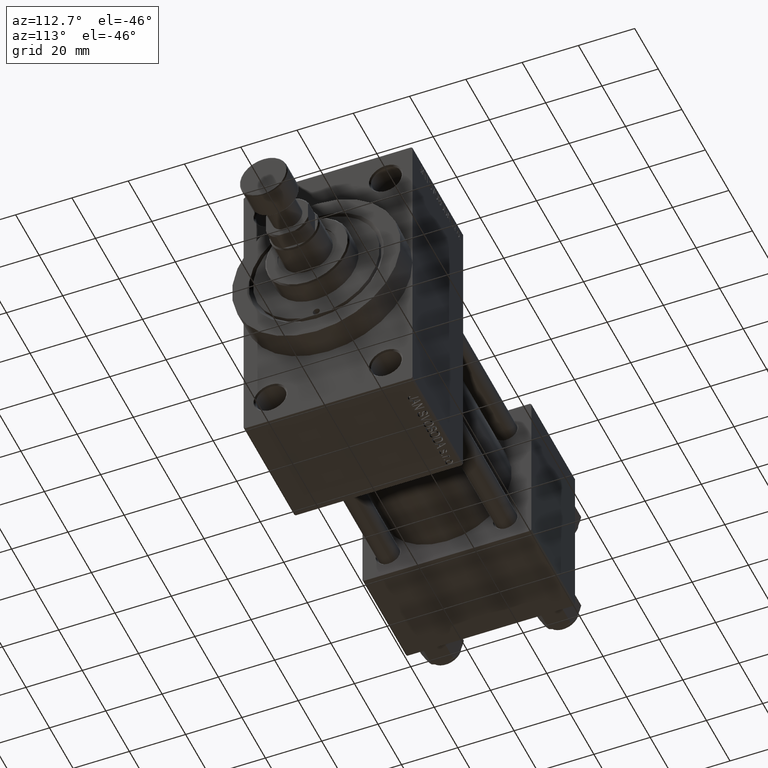
[diagram: clean part render]
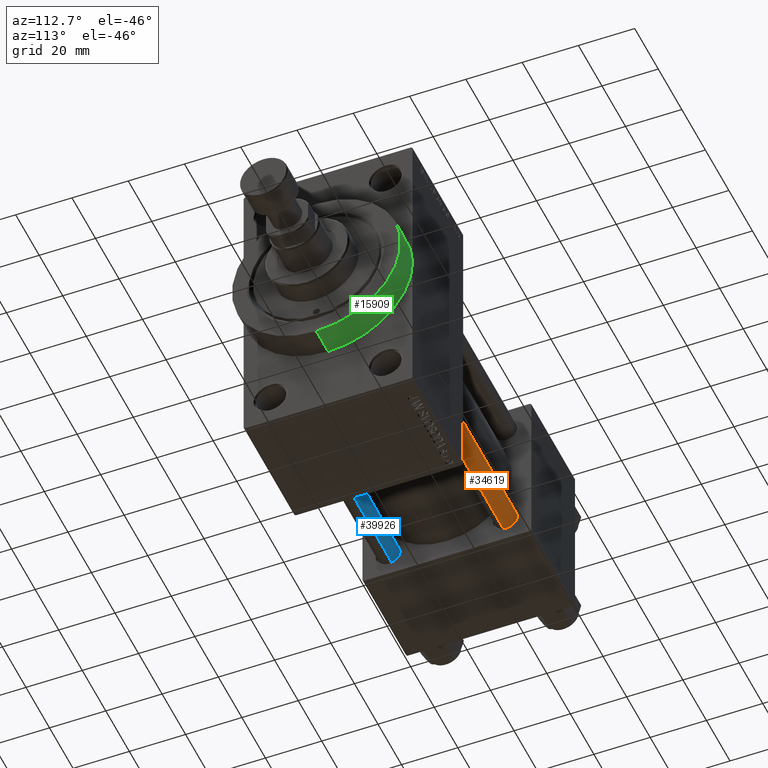
[diagram: same view with three faces highlighted in distinct colors, each labeled with its STEP entity id]
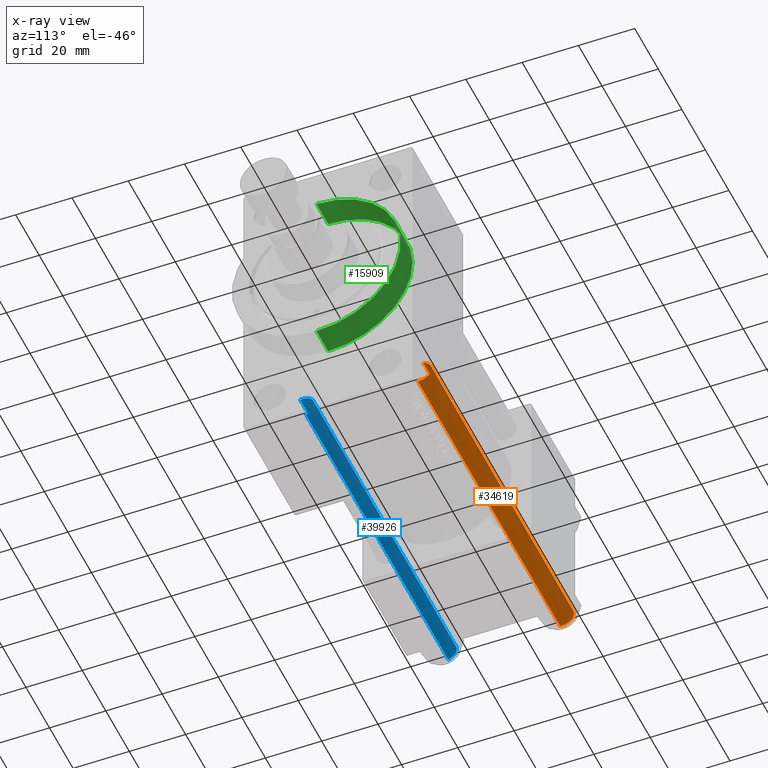
[diagram: x-ray of the same camera — body ghosted, the three highlighted faces saturated]
A machine part, auxiliary view with three faces highlighted in distinct colors.
The next image is the same camera in x-ray (body ghosted, the three faces saturated) — at least one of them is partly hidden behind the body in this view.
Their STEP definitions:

[orange] entity #34619 — the highlighted cylindrical surface (edge-blend (fillet) strip) has radius 4 mm, axis along (1, -0, 0).
#1258 = CARTESIAN_POINT ( 'NONE',  ( 4.000000000000000000, 4.898587196589411843E-16, 122.0000000000000000 ) ) ;
#1484 = LINE ( 'NONE', #1258, #18947 ) ;
#3164 = ORIENTED_EDGE ( 'NONE', *, *, #9100, .T. ) ;
#5707 = DIRECTION ( 'NONE',  ( -0.000000000000000000, -0.000000000000000000, 1.000000000000000000 ) ) ;
#6847 = CARTESIAN_POINT ( 'NONE',  ( -4.000000000000000000, 0.000000000000000000, 122.0000000000000000 ) ) ;
#7933 = AXIS2_PLACEMENT_3D ( 'NONE', #42003, #5707, #38379 ) ;
#8348 = EDGE_CURVE ( 'NONE', #18484, #18080, #25483, .T. ) ;
#9100 = EDGE_CURVE ( 'NONE', #23248, #18080, #38825, .T. ) ;
#14437 = DIRECTION ( 'NONE',  ( 1.000000000000000000, 0.000000000000000000, 0.000000000000000000 ) ) ;
#16521 = CARTESIAN_POINT ( 'NONE',  ( 0.000000000000000000, 0.000000000000000000, 122.0000000000000000 ) ) ;
#17091 = CARTESIAN_POINT ( 'NONE',  ( -4.000000000000000000, 0.000000000000000000, 121.5000000000000426 ) ) ;
#18080 = VERTEX_POINT ( 'NONE', #27108 ) ;
#18484 = VERTEX_POINT ( 'NONE', #17091 ) ;
#18947 = VECTOR ( 'NONE', #45047, 1000.000000000000000 ) ;
#19963 = CIRCLE ( 'NONE', #26170, 4.000000000000000000 ) ;
#20386 = ORIENTED_EDGE ( 'NONE', *, *, #8348, .F. ) ;
#20648 = DIRECTION ( 'NONE',  ( -0.000000000000000000, -0.000000000000000000, -1.000000000000000000 ) ) ;
#21707 = AXIS2_PLACEMENT_3D ( 'NONE', #16521, #20648, #27907 ) ;
#22616 = VECTOR ( 'NONE', #44082, 1000.000000000000000 ) ;
#23248 = VERTEX_POINT ( 'NONE', #24085 ) ;
#24085 = CARTESIAN_POINT ( 'NONE',  ( 4.000000000000000000, 4.898587196589411843E-16, 0.5000000000000559552 ) ) ;
#25483 = LINE ( 'NONE', #6847, #22616 ) ;
#26170 = AXIS2_PLACEMENT_3D ( 'NONE', #43210, #46836, #14437 ) ;
#26194 = EDGE_CURVE ( 'NONE', #18484, #38448, #19963, .T. ) ;
#26772 = ORIENTED_EDGE ( 'NONE', *, *, #26194, .T. ) ;
#27108 = CARTESIAN_POINT ( 'NONE',  ( -4.000000000000000000, 0.000000000000000000, 0.5000000000000559552 ) ) ;
#27257 = CARTESIAN_POINT ( 'NONE',  ( 4.000000000000000000, 4.898587196589411843E-16, 121.5000000000000426 ) ) ;
#27907 = DIRECTION ( 'NONE',  ( -1.000000000000000000, 0.000000000000000000, 0.000000000000000000 ) ) ;
#31045 = CYLINDRICAL_SURFACE ( 'NONE', #21707, 4.000000000000000000 ) ;
#34619 = ADVANCED_FACE ( 'NONE', ( #38546 ), #31045, .T. ) ;
#38379 = DIRECTION ( 'NONE',  ( 1.000000000000000000, 0.000000000000000000, 0.000000000000000000 ) ) ;
#38448 = VERTEX_POINT ( 'NONE', #27257 ) ;
#38546 = FACE_OUTER_BOUND ( 'NONE', #40560, .T. ) ;
#38825 = CIRCLE ( 'NONE', #7933, 4.000000000000000000 ) ;
#40560 = EDGE_LOOP ( 'NONE', ( #26772, #46616, #3164, #20386 ) ) ;
#42003 = CARTESIAN_POINT ( 'NONE',  ( 0.000000000000000000, 0.000000000000000000, 0.5000000000000559552 ) ) ;
#43210 = CARTESIAN_POINT ( 'NONE',  ( 0.000000000000000000, 0.000000000000000000, 121.5000000000000426 ) ) ;
#44082 = DIRECTION ( 'NONE',  ( -0.000000000000000000, -0.000000000000000000, -1.000000000000000000 ) ) ;
#45047 = DIRECTION ( 'NONE',  ( -0.000000000000000000, -0.000000000000000000, -1.000000000000000000 ) ) ;
#46616 = ORIENTED_EDGE ( 'NONE', *, *, #47820, .T. ) ;
#46836 = DIRECTION ( 'NONE',  ( 0.000000000000000000, 0.000000000000000000, -1.000000000000000000 ) ) ;
#47820 = EDGE_CURVE ( 'NONE', #38448, #23248, #1484, .T. ) ;

[blue] entity #39926 — the highlighted cylindrical surface (edge-blend (fillet) strip) has radius 4 mm, axis along (-1, 0, 0).
#1258 = CARTESIAN_POINT ( 'NONE',  ( 4.000000000000000000, 4.898587196589411843E-16, 122.0000000000000000 ) ) ;
#1484 = LINE ( 'NONE', #1258, #18947 ) ;
#2740 = FACE_OUTER_BOUND ( 'NONE', #15203, .T. ) ;
#6847 = CARTESIAN_POINT ( 'NONE',  ( -4.000000000000000000, 0.000000000000000000, 122.0000000000000000 ) ) ;
#8348 = EDGE_CURVE ( 'NONE', #18484, #18080, #25483, .T. ) ;
#13538 = ORIENTED_EDGE ( 'NONE', *, *, #47820, .F. ) ;
#13793 = DIRECTION ( 'NONE',  ( 1.000000000000000000, 0.000000000000000000, 0.000000000000000000 ) ) ;
#13871 = DIRECTION ( 'NONE',  ( -0.000000000000000000, -0.000000000000000000, -1.000000000000000000 ) ) ;
#14819 = AXIS2_PLACEMENT_3D ( 'NONE', #35894, #13871, #17496 ) ;
#15203 = EDGE_LOOP ( 'NONE', ( #13538, #22610, #47753, #39641 ) ) ;
#16516 = CIRCLE ( 'NONE', #21220, 4.000000000000000000 ) ;
#17091 = CARTESIAN_POINT ( 'NONE',  ( -4.000000000000000000, 0.000000000000000000, 121.5000000000000426 ) ) ;
#17496 = DIRECTION ( 'NONE',  ( -1.000000000000000000, 0.000000000000000000, 0.000000000000000000 ) ) ;
#17824 = AXIS2_PLACEMENT_3D ( 'NONE', #17884, #32631, #44240 ) ;
#17884 = CARTESIAN_POINT ( 'NONE',  ( 0.000000000000000000, 0.000000000000000000, 121.5000000000000426 ) ) ;
#18080 = VERTEX_POINT ( 'NONE', #27108 ) ;
#18484 = VERTEX_POINT ( 'NONE', #17091 ) ;
#18947 = VECTOR ( 'NONE', #45047, 1000.000000000000000 ) ;
#21138 = CYLINDRICAL_SURFACE ( 'NONE', #14819, 4.000000000000000000 ) ;
#21220 = AXIS2_PLACEMENT_3D ( 'NONE', #46928, #47160, #13793 ) ;
#22610 = ORIENTED_EDGE ( 'NONE', *, *, #34395, .T. ) ;
#22616 = VECTOR ( 'NONE', #44082, 1000.000000000000000 ) ;
#23248 = VERTEX_POINT ( 'NONE', #24085 ) ;
#24085 = CARTESIAN_POINT ( 'NONE',  ( 4.000000000000000000, 4.898587196589411843E-16, 0.5000000000000559552 ) ) ;
#24775 = CIRCLE ( 'NONE', #17824, 4.000000000000000000 ) ;
#25483 = LINE ( 'NONE', #6847, #22616 ) ;
#27108 = CARTESIAN_POINT ( 'NONE',  ( -4.000000000000000000, 0.000000000000000000, 0.5000000000000559552 ) ) ;
#27257 = CARTESIAN_POINT ( 'NONE',  ( 4.000000000000000000, 4.898587196589411843E-16, 121.5000000000000426 ) ) ;
#32631 = DIRECTION ( 'NONE',  ( 0.000000000000000000, 0.000000000000000000, -1.000000000000000000 ) ) ;
#34395 = EDGE_CURVE ( 'NONE', #38448, #18484, #24775, .T. ) ;
#35894 = CARTESIAN_POINT ( 'NONE',  ( 0.000000000000000000, 0.000000000000000000, 122.0000000000000000 ) ) ;
#38448 = VERTEX_POINT ( 'NONE', #27257 ) ;
#39641 = ORIENTED_EDGE ( 'NONE', *, *, #45302, .T. ) ;
#39926 = ADVANCED_FACE ( 'NONE', ( #2740 ), #21138, .T. ) ;
#44082 = DIRECTION ( 'NONE',  ( -0.000000000000000000, -0.000000000000000000, -1.000000000000000000 ) ) ;
#44240 = DIRECTION ( 'NONE',  ( 1.000000000000000000, 0.000000000000000000, 0.000000000000000000 ) ) ;
#45047 = DIRECTION ( 'NONE',  ( -0.000000000000000000, -0.000000000000000000, -1.000000000000000000 ) ) ;
#45302 = EDGE_CURVE ( 'NONE', #18080, #23248, #16516, .T. ) ;
#46928 = CARTESIAN_POINT ( 'NONE',  ( 0.000000000000000000, 0.000000000000000000, 0.5000000000000559552 ) ) ;
#47160 = DIRECTION ( 'NONE',  ( -0.000000000000000000, -0.000000000000000000, 1.000000000000000000 ) ) ;
#47753 = ORIENTED_EDGE ( 'NONE', *, *, #8348, .T. ) ;
#47820 = EDGE_CURVE ( 'NONE', #38448, #23248, #1484, .T. ) ;

[green] entity #15909 — the highlighted cylindrical surface (partial cylindrical patch) has radius 30 mm, axis along (-1, -0, -0).
#918 = ORIENTED_EDGE ( 'NONE', *, *, #26039, .T. ) ;
#3516 = DIRECTION ( 'NONE',  ( 1.000000000000000000, 0.000000000000000000, 0.000000000000000000 ) ) ;
#5258 = LINE ( 'NONE', #45644, #45336 ) ;
#5881 = VERTEX_POINT ( 'NONE', #36568 ) ;
#6528 = EDGE_CURVE ( 'NONE', #5881, #26311, #34887, .T. ) ;
#9023 = VERTEX_POINT ( 'NONE', #30401 ) ;
#11002 = DIRECTION ( 'NONE',  ( 0.000000000000000000, 0.000000000000000000, -1.000000000000000000 ) ) ;
#12327 = DIRECTION ( 'NONE',  ( -1.000000000000000000, -0.000000000000000000, -0.000000000000000000 ) ) ;
#12925 = DIRECTION ( 'NONE',  ( 0.000000000000000000, 0.000000000000000000, -1.000000000000000000 ) ) ;
#13923 = DIRECTION ( 'NONE',  ( -1.000000000000000000, -0.000000000000000000, -0.000000000000000000 ) ) ;
#15746 = CARTESIAN_POINT ( 'NONE',  ( 138.0000000000000000, 0.000000000000000000, 0.000000000000000000 ) ) ;
#15888 = VECTOR ( 'NONE', #13923, 1000.000000000000000 ) ;
#15909 = ADVANCED_FACE ( 'NONE', ( #22998 ), #30473, .T. ) ;
#16259 = DIRECTION ( 'NONE',  ( 0.000000000000000000, 0.000000000000000000, -1.000000000000000000 ) ) ;
#18867 = AXIS2_PLACEMENT_3D ( 'NONE', #30225, #12327, #27094 ) ;
#18871 = EDGE_CURVE ( 'NONE', #26311, #40032, #21928, .T. ) ;
#20189 = CARTESIAN_POINT ( 'NONE',  ( 148.0000000000000284, 0.000000000000000000, 0.000000000000000000 ) ) ;
#20209 = AXIS2_PLACEMENT_3D ( 'NONE', #20189, #41974, #12925 ) ;
#21783 = EDGE_LOOP ( 'NONE', ( #38006, #918, #44718, #26899, #27834 ) ) ;
#21928 = LINE ( 'NONE', #28935, #15888 ) ;
#22423 = EDGE_CURVE ( 'NONE', #25728, #40032, #32994, .T. ) ;
#22998 = FACE_OUTER_BOUND ( 'NONE', #21783, .T. ) ;
#25728 = VERTEX_POINT ( 'NONE', #37277 ) ;
#26039 = EDGE_CURVE ( 'NONE', #5881, #9023, #5258, .T. ) ;
#26311 = VERTEX_POINT ( 'NONE', #34706 ) ;
#26467 = CARTESIAN_POINT ( 'NONE',  ( 138.0000000000000000, 0.000000000000000000, 0.000000000000000000 ) ) ;
#26899 = ORIENTED_EDGE ( 'NONE', *, *, #22423, .T. ) ;
#27094 = DIRECTION ( 'NONE',  ( 0.000000000000000000, 0.000000000000000000, 1.000000000000000000 ) ) ;
#27834 = ORIENTED_EDGE ( 'NONE', *, *, #18871, .F. ) ;
#28935 = CARTESIAN_POINT ( 'NONE',  ( 148.0000000000000284, 0.000000000000000000, 30.00000000000000000 ) ) ;
#30225 = CARTESIAN_POINT ( 'NONE',  ( 148.0000000000000284, 0.000000000000000000, 0.000000000000000000 ) ) ;
#30401 = CARTESIAN_POINT ( 'NONE',  ( 138.0000000000000000, 3.673940397442059178E-15, -30.00000000000000000 ) ) ;
#30473 = CYLINDRICAL_SURFACE ( 'NONE', #18867, 30.00000000000000000 ) ;
#31865 = AXIS2_PLACEMENT_3D ( 'NONE', #15746, #3516, #11002 ) ;
#32994 = CIRCLE ( 'NONE', #45341, 30.00000000000000000 ) ;
#34706 = CARTESIAN_POINT ( 'NONE',  ( 148.0000000000000284, 0.000000000000000000, 30.00000000000000000 ) ) ;
#34887 = CIRCLE ( 'NONE', #20209, 30.00000000000000000 ) ;
#36568 = CARTESIAN_POINT ( 'NONE',  ( 148.0000000000000284, 3.673940397442059178E-15, -30.00000000000000000 ) ) ;
#37277 = CARTESIAN_POINT ( 'NONE',  ( 138.0000000000000000, 30.00000000000000000, 0.000000000000000000 ) ) ;
#38006 = ORIENTED_EDGE ( 'NONE', *, *, #6528, .F. ) ;
#38008 = EDGE_CURVE ( 'NONE', #9023, #25728, #41126, .T. ) ;
#38054 = DIRECTION ( 'NONE',  ( 1.000000000000000000, 0.000000000000000000, 0.000000000000000000 ) ) ;
#40032 = VERTEX_POINT ( 'NONE', #44093 ) ;
#41126 = CIRCLE ( 'NONE', #31865, 30.00000000000000000 ) ;
#41309 = DIRECTION ( 'NONE',  ( -1.000000000000000000, -0.000000000000000000, -0.000000000000000000 ) ) ;
#41974 = DIRECTION ( 'NONE',  ( 1.000000000000000000, 0.000000000000000000, 0.000000000000000000 ) ) ;
#44093 = CARTESIAN_POINT ( 'NONE',  ( 138.0000000000000000, 0.000000000000000000, 30.00000000000000000 ) ) ;
#44718 = ORIENTED_EDGE ( 'NONE', *, *, #38008, .T. ) ;
#45336 = VECTOR ( 'NONE', #41309, 1000.000000000000000 ) ;
#45341 = AXIS2_PLACEMENT_3D ( 'NONE', #26467, #38054, #16259 ) ;
#45644 = CARTESIAN_POINT ( 'NONE',  ( 148.0000000000000284, 3.673940397442059178E-15, -30.00000000000000000 ) ) ;